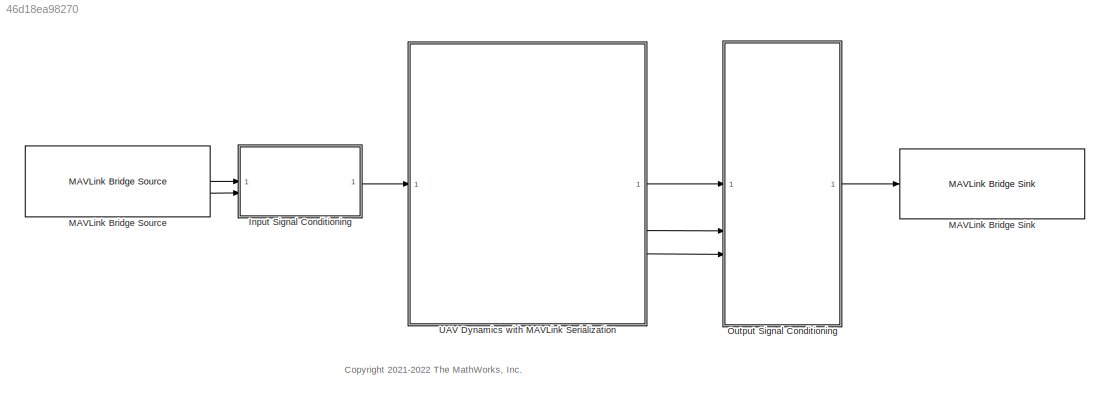
MODEL slx_46d18ea98270
KIND model
CONFIG AbsTol = auto
CONFIG EnableMultiTasking = off
CONFIG FixedStep = SampleTime
CONFIG MaxStep = auto
CONFIG MinStep = auto
CONFIG RelTol = 1e-3
CONFIG SampleTimeConstraint = Unconstrained
CONFIG SolverName = ode4
CONFIG StartTime = 0.0
CONFIG StopTime = inf
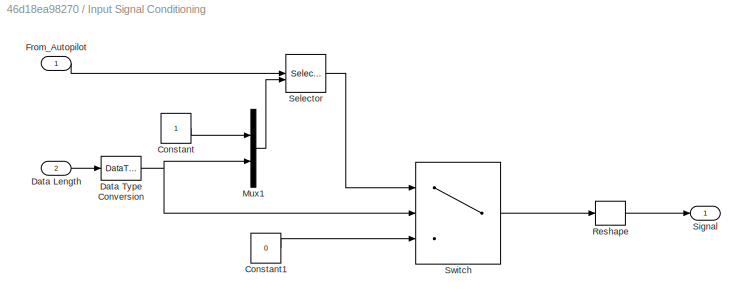
BLOCK [SubSystem] Input Signal Conditioning
BLOCK [Constant] Input Signal Conditioning/Constant
BLOCK [Constant] Input Signal Conditioning/Constant1
  OutDataTypeStr = uint8
  SampleTime = -1
  Value = 0
BLOCK [Inport] Input Signal Conditioning/Data Length
  Port = 2
BLOCK [DataTypeConversion] Input Signal Conditioning/Data Type Conversion
  OutDataTypeStr = double
  RndMeth = Floor
  SaturateOnIntegerOverflow = off
BLOCK [Inport] Input Signal Conditioning/From_Autopilot
BLOCK [Mux] Input Signal Conditioning/Mux1
  DisplayOption = bar
  Inputs = 2
BLOCK [Reshape] Input Signal Conditioning/Reshape
BLOCK [Selector] Input Signal Conditioning/Selector
  IndexOptions = Starting and ending indices (port)
  Indices = [1 3]
  InputPortWidth = MAVLink_Input_Read_Size
  OutputSizes = 1
BLOCK [Outport] Input Signal Conditioning/Signal
BLOCK [Switch] Input Signal Conditioning/Switch
  Criteria = u2 > Threshold
  InputSameDT = off
  SaturateOnIntegerOverflow = off
BLOCK [Reference] MAVLink Bridge Sink  REF=px4MAVLinkBridgelib/MAVLink Bridge Sink
  SourceBlock = px4MAVLinkBridgelib/MAVLink Bridge Sink
  SourceType = px4.internal.block.MAVLinkSink
BLOCK [Reference] MAVLink Bridge Source  REF=px4MAVLinkBridgelib/MAVLink Bridge Source
  SourceBlock = px4MAVLinkBridgelib/MAVLink Bridge Source
  SourceType = px4.internal.block.MAVLinkSource
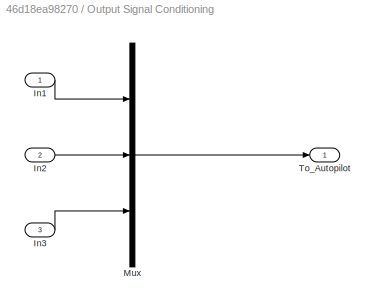
BLOCK [SubSystem] Output Signal Conditioning
BLOCK [Inport] Output Signal Conditioning/In1
BLOCK [Inport] Output Signal Conditioning/In2
  Port = 2
BLOCK [Inport] Output Signal Conditioning/In3
  Port = 3
BLOCK [Mux] Output Signal Conditioning/Mux
  DisplayOption = bar
  Inputs = 3
BLOCK [Outport] Output Signal Conditioning/To_Autopilot
BLOCK [ModelReference] UAV Dynamics with MAVLink Serialization
  ModelNameDialog = UAV_Dynamics_DataSerialization.slx
  ModelReferenceVersion = 2.1
ANNOTATION (root): <copyright redacted>
LINE Input Signal Conditioning/Constant1:1 -> Input Signal Conditioning/Switch:3
LINE Input Signal Conditioning/Constant:1 -> Input Signal Conditioning/Mux1:1
LINE Input Signal Conditioning/Data Length:1 -> Input Signal Conditioning/Data Type Conversion:1
NET Input Signal Conditioning/Data Type Conversion:1 -> Input Signal Conditioning/Mux1:2, Input Signal Conditioning/Switch:2
LINE Input Signal Conditioning/From_Autopilot:1 -> Input Signal Conditioning/Selector:1
LINE Input Signal Conditioning/Mux1:1 -> Input Signal Conditioning/Selector:2
LINE Input Signal Conditioning/Reshape:1 -> Input Signal Conditioning/Signal:1
LINE Input Signal Conditioning/Selector:1 -> Input Signal Conditioning/Switch:1
LINE Input Signal Conditioning/Switch:1 -> Input Signal Conditioning/Reshape:1
LINE Input Signal Conditioning:1 -> UAV Dynamics with MAVLink Serialization:1
LINE MAVLink Bridge Source:1 -> Input Signal Conditioning:1
LINE MAVLink Bridge Source:2 -> Input Signal Conditioning:2
LINE Output Signal Conditioning/In1:1 -> Output Signal Conditioning/Mux:1
LINE Output Signal Conditioning/In2:1 -> Output Signal Conditioning/Mux:2
LINE Output Signal Conditioning/In3:1 -> Output Signal Conditioning/Mux:3
LINE Output Signal Conditioning/Mux:1 -> Output Signal Conditioning/To_Autopilot:1
LINE Output Signal Conditioning:1 -> MAVLink Bridge Sink:1
LINE UAV Dynamics with MAVLink Serialization:1 -> Output Signal Conditioning:1
LINE UAV Dynamics with MAVLink Serialization:2 -> Output Signal Conditioning:2
LINE UAV Dynamics with MAVLink Serialization:3 -> Output Signal Conditioning:3
note: NET lines group one-source signal fan-out (src -> all destinations, sorted); 1:1 wires keep LINE
